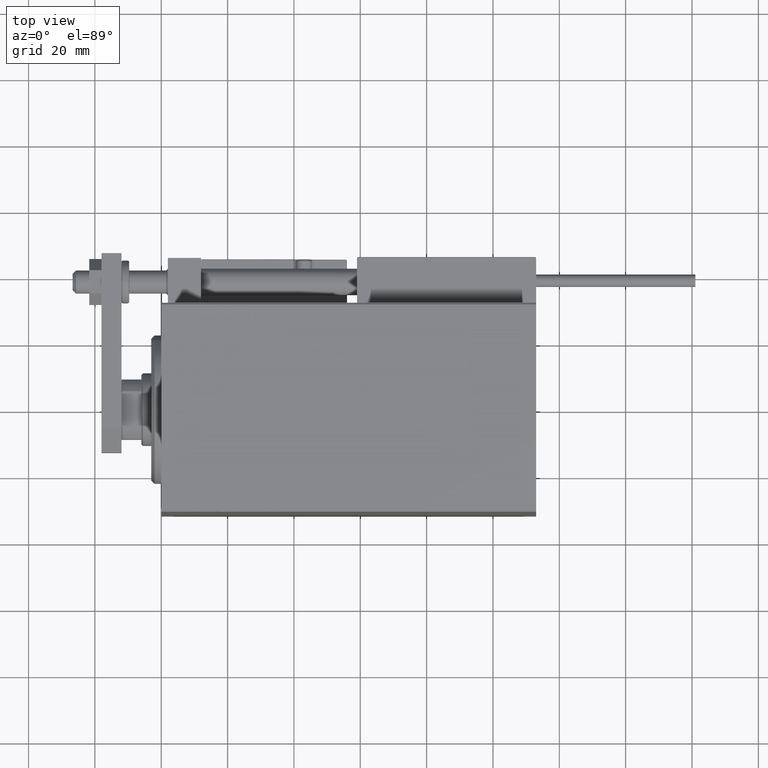
[diagram: clean part render]
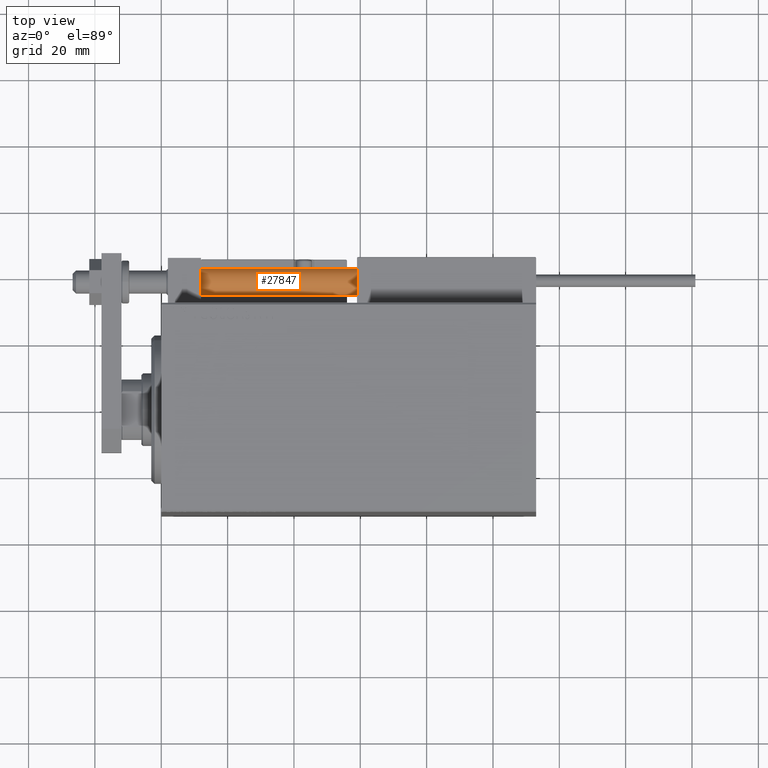
[diagram: same view with one face highlighted and labeled with its STEP entity id]
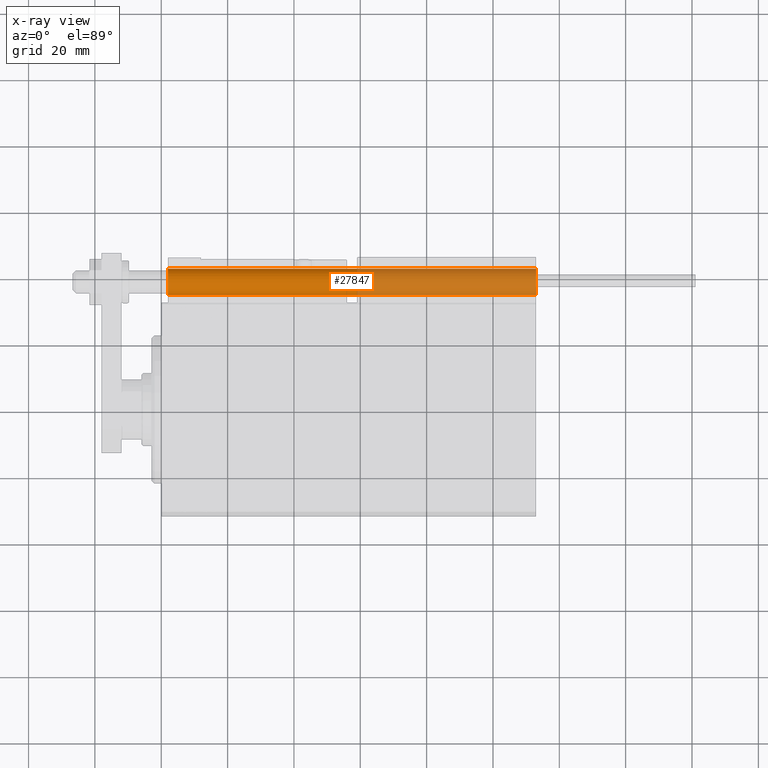
[diagram: x-ray of the same camera — body ghosted, the highlighted face saturated]
A machine part, top view. The second image highlights one B-rep face of the part: STEP entity #27847.
The next image is the same camera in x-ray: the body ghosted, the highlighted face saturated — about 49% of this face is hidden behind the body in this view.
In plain terms, the highlighted cylindrical surface (edge-blend (fillet) strip) has radius 4 mm, axis along (-1, 0, 0).
Its self-contained STEP definition (entity closure, byte-faithful):
#498 = DIRECTION ( 'NONE',  ( 1.000000000000000000, 0.000000000000000000, 0.000000000000000000 ) ) ;
#3942 = EDGE_LOOP ( 'NONE', ( #41224, #32016, #4668, #30593 ) ) ;
#4668 = ORIENTED_EDGE ( 'NONE', *, *, #26533, .T. ) ;
#5376 = LINE ( 'NONE', #32499, #43413 ) ;
#5811 = AXIS2_PLACEMENT_3D ( 'NONE', #18898, #30815, #37909 ) ;
#6743 = CARTESIAN_POINT ( 'NONE',  ( 0.000000000000000000, 0.000000000000000000, 113.0000000000000000 ) ) ;
#7588 = CARTESIAN_POINT ( 'NONE',  ( 0.000000000000000000, 0.000000000000000000, 2.000000000000029310 ) ) ;
#8184 = CARTESIAN_POINT ( 'NONE',  ( -4.000000000000000000, 0.000000000000000000, 113.0000000000000000 ) ) ;
#9862 = CIRCLE ( 'NONE', #5811, 4.000000000000000000 ) ;
#11482 = DIRECTION ( 'NONE',  ( -0.000000000000000000, -0.000000000000000000, -1.000000000000000000 ) ) ;
#12243 = CARTESIAN_POINT ( 'NONE',  ( 4.000000000000000000, 4.898587196589412829E-16, 2.000000000000029310 ) ) ;
#13933 = EDGE_CURVE ( 'NONE', #33119, #47714, #46199, .T. ) ;
#17533 = EDGE_CURVE ( 'NONE', #23160, #32114, #5376, .T. ) ;
#17636 = DIRECTION ( 'NONE',  ( -0.000000000000000000, -0.000000000000000000, -1.000000000000000000 ) ) ;
#18898 = CARTESIAN_POINT ( 'NONE',  ( 0.000000000000000000, 0.000000000000000000, 113.0000000000000000 ) ) ;
#19438 = CARTESIAN_POINT ( 'NONE',  ( 4.000000000000000000, 4.898587196589412829E-16, 113.0000000000000000 ) ) ;
#19456 = CIRCLE ( 'NONE', #24306, 4.000000000000000000 ) ;
#22203 = DIRECTION ( 'NONE',  ( -1.000000000000000000, 0.000000000000000000, 0.000000000000000000 ) ) ;
#23160 = VERTEX_POINT ( 'NONE', #19438 ) ;
#24306 = AXIS2_PLACEMENT_3D ( 'NONE', #7588, #38505, #498 ) ;
#25237 = CYLINDRICAL_SURFACE ( 'NONE', #32444, 4.000000000000000000 ) ;
#26533 = EDGE_CURVE ( 'NONE', #32114, #47714, #19456, .T. ) ;
#27847 = ADVANCED_FACE ( 'NONE', ( #49557 ), #25237, .T. ) ;
#30593 = ORIENTED_EDGE ( 'NONE', *, *, #13933, .F. ) ;
#30815 = DIRECTION ( 'NONE',  ( 0.000000000000000000, 0.000000000000000000, 1.000000000000000000 ) ) ;
#32016 = ORIENTED_EDGE ( 'NONE', *, *, #17533, .T. ) ;
#32114 = VERTEX_POINT ( 'NONE', #12243 ) ;
#32444 = AXIS2_PLACEMENT_3D ( 'NONE', #6743, #17636, #22203 ) ;
#32499 = CARTESIAN_POINT ( 'NONE',  ( 4.000000000000000000, 4.898587196589412829E-16, 113.0000000000000000 ) ) ;
#33119 = VERTEX_POINT ( 'NONE', #45971 ) ;
#37909 = DIRECTION ( 'NONE',  ( 1.000000000000000000, 0.000000000000000000, 0.000000000000000000 ) ) ;
#38505 = DIRECTION ( 'NONE',  ( -0.000000000000000000, -0.000000000000000000, 1.000000000000000000 ) ) ;
#39980 = CARTESIAN_POINT ( 'NONE',  ( -4.000000000000000000, 0.000000000000000000, 2.000000000000029310 ) ) ;
#41224 = ORIENTED_EDGE ( 'NONE', *, *, #46483, .F. ) ;
#43413 = VECTOR ( 'NONE', #47454, 1000.000000000000000 ) ;
#45971 = CARTESIAN_POINT ( 'NONE',  ( -4.000000000000000000, 0.000000000000000000, 113.0000000000000000 ) ) ;
#46199 = LINE ( 'NONE', #8184, #47807 ) ;
#46483 = EDGE_CURVE ( 'NONE', #23160, #33119, #9862, .T. ) ;
#47454 = DIRECTION ( 'NONE',  ( -0.000000000000000000, -0.000000000000000000, -1.000000000000000000 ) ) ;
#47714 = VERTEX_POINT ( 'NONE', #39980 ) ;
#47807 = VECTOR ( 'NONE', #11482, 1000.000000000000000 ) ;
#49557 = FACE_OUTER_BOUND ( 'NONE', #3942, .T. ) ;